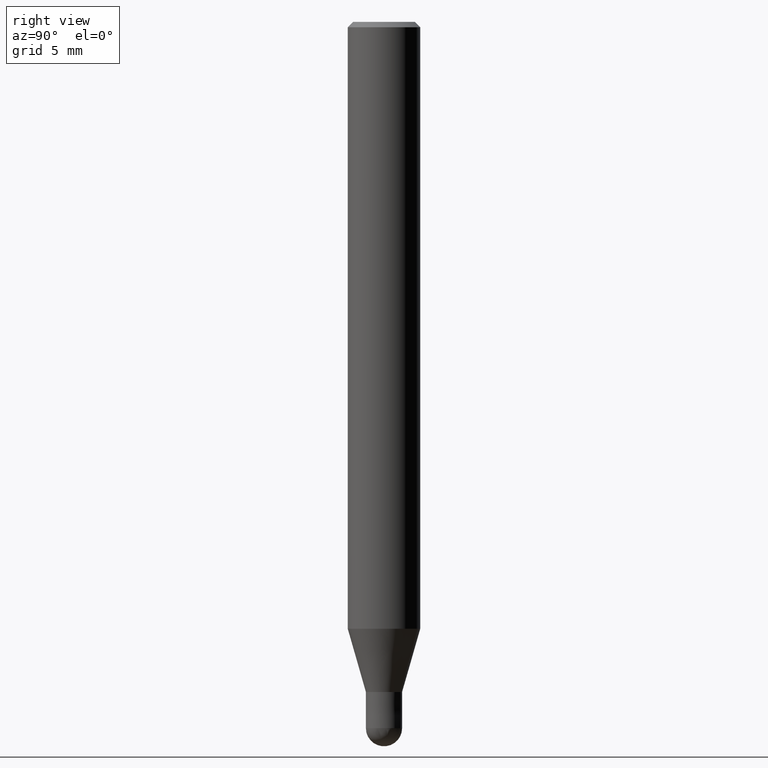
[diagram: clean part render]
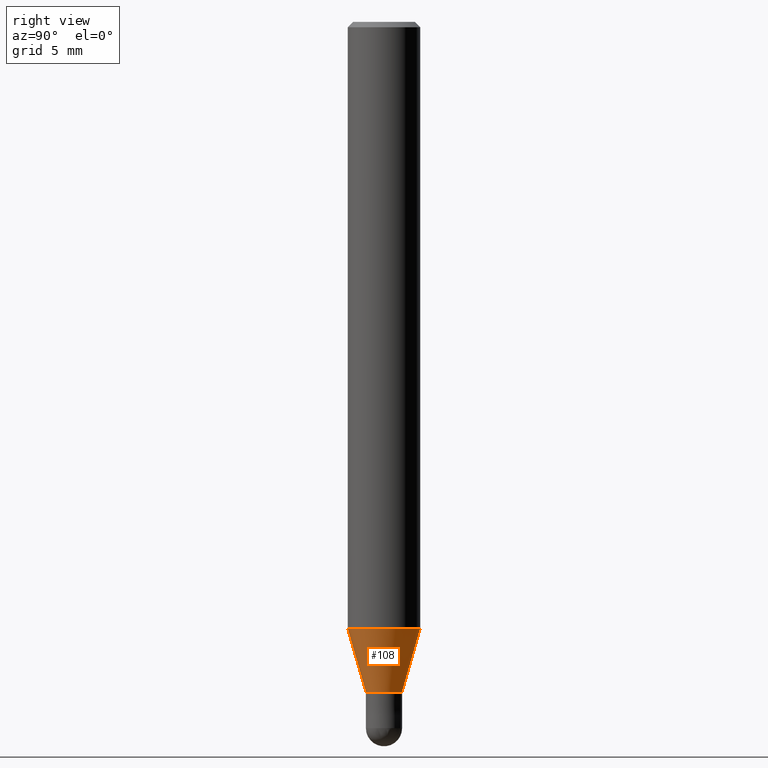
[diagram: same view with one face highlighted and labeled with its STEP entity id]
A machine part, right view. The second image highlights one B-rep face of the part: STEP entity #108.
In plain terms, the highlighted conical surface has half-angle 16.002 deg.
Its self-contained STEP definition (entity closure, byte-faithful):
#88=EDGE_CURVE('',#154,#128,#213,.T.);
#108=ADVANCED_FACE('',(#235),#236,.T.);
#128=VERTEX_POINT('',#260);
#140=EDGE_CURVE('',#162,#154,#273,.T.);
#154=VERTEX_POINT('',#288);
#162=VERTEX_POINT('',#296);
#180=EDGE_CURVE('',#188,#162,#318,.T.);
#184=EDGE_CURVE('',#188,#128,#322,.T.);
#188=VERTEX_POINT('',#328);
#213=LINE('',#347,#348);
#235=FACE_OUTER_BOUND('',#378,.T.);
#236=CONICAL_SURFACE('',#379,1.49995,0.279284171542493);
#260=CARTESIAN_POINT('',(2.44915147732706E-016,-1.99995,-33.513));
#273=CIRCLE('',#424,0.99995);
#288=CARTESIAN_POINT('',(1.22454512350469E-016,-0.99995,-37.0));
#296=CARTESIAN_POINT('',(0.0,0.99995,-37.0));
#318=LINE('',#476,#477);
#322=CIRCLE('',#484,1.99995);
#328=CARTESIAN_POINT('',(0.0,1.99995,-33.513));
#347=CARTESIAN_POINT('',(1.83684830041587E-016,-1.49995,-35.2565));
#348=VECTOR('',#496,1.0);
#378=EDGE_LOOP('',(#526,#527,#528,#529));
#379=AXIS2_PLACEMENT_3D('',#530,#531,#532);
#424=AXIS2_PLACEMENT_3D('',#582,#583,#584);
#476=CARTESIAN_POINT('',(-1.83684830041587E-016,1.49995,-35.2565));
#477=VECTOR('',#636,1.0);
#484=AXIS2_PLACEMENT_3D('',#638,#639,#640);
#496=DIRECTION('',(3.3758432755158E-017,-0.275667626987133,0.961253015304131));
#526=ORIENTED_EDGE('',*,*,#180,.F.);
#527=ORIENTED_EDGE('',*,*,#184,.T.);
#528=ORIENTED_EDGE('',*,*,#88,.F.);
#529=ORIENTED_EDGE('',*,*,#140,.F.);
#530=CARTESIAN_POINT('',(0.0,0.0,-35.2565));
#531=DIRECTION('',(-0.0,-0.0,1.0));
#532=DIRECTION('',(0.0,1.0,0.0));
#582=CARTESIAN_POINT('',(0.0,0.0,-37.0));
#583=DIRECTION('',(0.0,0.0,-1.0));
#584=DIRECTION('',(0.0,1.0,0.0));
#636=DIRECTION('',(3.3758432755158E-017,-0.275667626987133,-0.961253015304131));
#638=CARTESIAN_POINT('',(0.0,0.0,-33.513));
#639=DIRECTION('',(0.0,0.0,-1.0));
#640=DIRECTION('',(0.0,1.0,0.0));